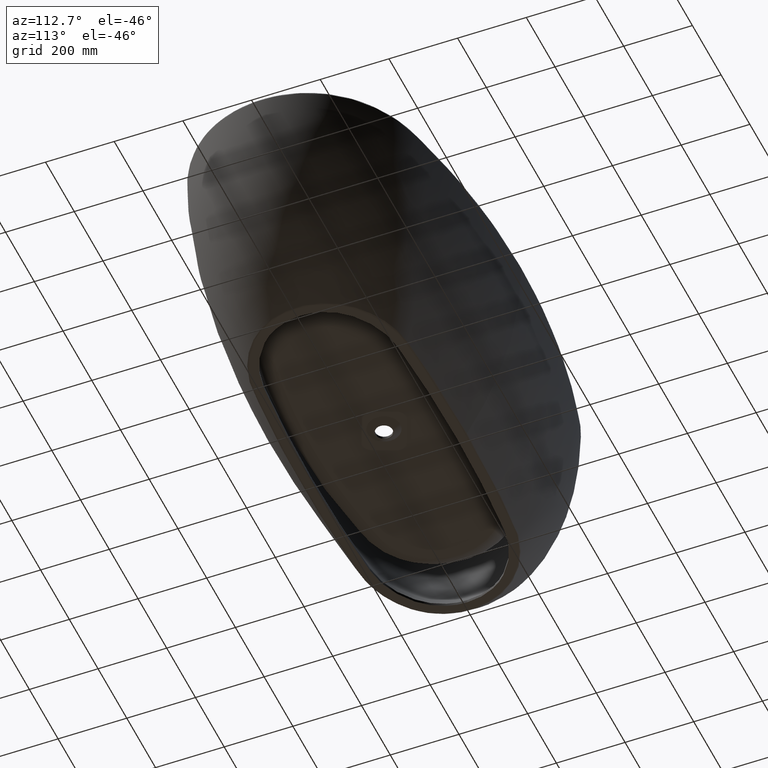
[diagram: clean part render]
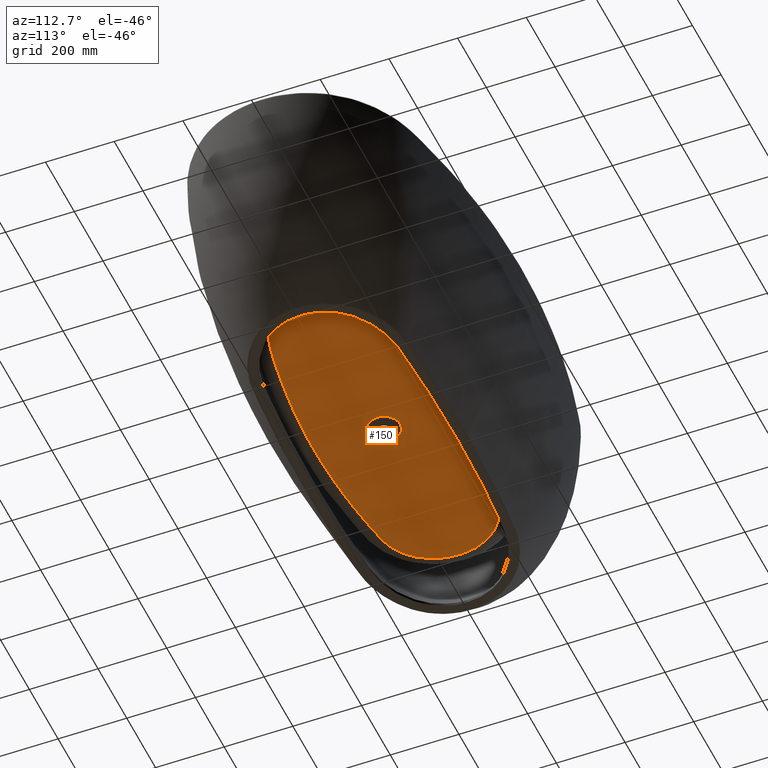
[diagram: same view with one face highlighted and labeled with its STEP entity id]
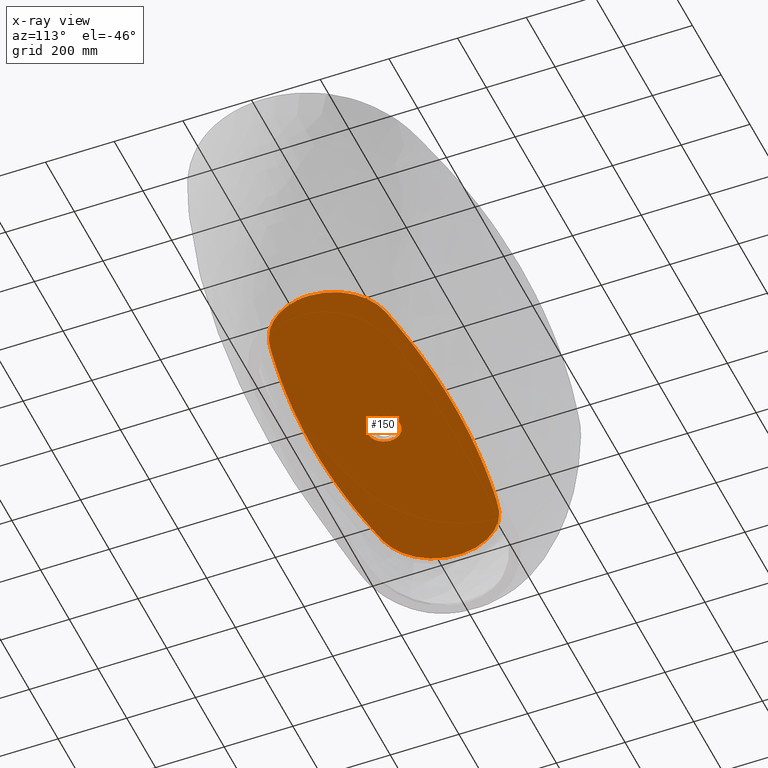
[diagram: x-ray of the same camera — body ghosted, the highlighted face saturated]
A machine part, auxiliary view. The second image highlights one B-rep face of the part: STEP entity #150.
The next image is the same camera in x-ray: the body ghosted, the highlighted face saturated — about 0% of this face is hidden behind the body in this view.
In plain terms, the highlighted conical surface has half-angle 88.299 deg.
Its self-contained STEP definition (entity closure, byte-faithful):
#122=CONICAL_SURFACE('',#644,45.2374720252349,88.2989820319671);
#125=CIRCLE('',#639,47.3250734244238);
#150=ADVANCED_FACE('',(#188,#189),#122,.T.);
#188=FACE_BOUND('',#224,.T.);
#189=FACE_BOUND('',#225,.T.);
#224=EDGE_LOOP('',(#305,#306,#307));
#225=EDGE_LOOP('',(#308));
#305=ORIENTED_EDGE('',*,*,#514,.F.);
#306=ORIENTED_EDGE('',*,*,#515,.F.);
#307=ORIENTED_EDGE('',*,*,#516,.F.);
#308=ORIENTED_EDGE('',*,*,#511,.T.);
#445=VERTEX_POINT('',#4102);
#448=VERTEX_POINT('',#4115);
#449=VERTEX_POINT('',#4116);
#450=VERTEX_POINT('',#4205);
#511=EDGE_CURVE('',#445,#445,#125,.T.);
#514=EDGE_CURVE('',#448,#449,#589,.T.);
#515=EDGE_CURVE('',#450,#448,#590,.T.);
#516=EDGE_CURVE('',#449,#450,#591,.T.);
#589=B_SPLINE_CURVE_WITH_KNOTS('',3,(#4109,#4110,#4111,#4112,#4113,#4114),
 .UNSPECIFIED.,.F.,.F.,(4,2,4),(0.,0.5,1.),.UNSPECIFIED.);
#590=B_SPLINE_CURVE_WITH_KNOTS('',3,(#4117,#4118,#4119,#4120,#4121,#4122,
#4123,#4124,#4125,#4126,#4127,#4128,#4129,#4130,#4131,#4132,#4133,#4134,
#4135,#4136,#4137,#4138,#4139,#4140,#4141,#4142,#4143,#4144,#4145,#4146,
#4147,#4148,#4149,#4150,#4151,#4152,#4153,#4154,#4155,#4156,#4157,#4158,
#4159,#4160,#4161,#4162,#4163,#4164,#4165,#4166,#4167,#4168,#4169,#4170,
#4171,#4172,#4173,#4174,#4175,#4176,#4177,#4178,#4179,#4180,#4181,#4182,
#4183,#4184,#4185,#4186,#4187,#4188,#4189,#4190,#4191,#4192,#4193,#4194,
#4195,#4196,#4197,#4198,#4199,#4200,#4201,#4202,#4203,#4204),
 .UNSPECIFIED.,.F.,.F.,(4,2,2,2,2,2,2,2,2,2,2,2,2,2,2,2,2,2,2,2,2,2,2,2,
2,2,2,2,2,2,2,2,2,2,2,2,2,2,2,2,2,2,2,4),(0.,0.015625,0.03125,0.0390625,
0.046875,0.0624999999999999,0.0703124999999998,0.0781249999999998,0.0937499999999997,
0.1015625,0.109375,0.1171875,0.125,0.249999999999999,0.312499999999999,
0.374999999999999,0.499999999999999,0.531249999999999,0.539062499999999,
0.546874999999999,0.562499999999999,0.578124999999999,0.593749999999999,
0.601562499999999,0.609375,0.625,0.640625,0.65625,0.671875,0.6875,0.703125,
0.718750000000001,0.726562500000001,0.734375000000001,0.750000000000001,
0.757812500000001,0.765625000000001,0.781250000000001,0.789062500000001,
0.796875000000001,0.812500000000001,0.875000000000001,0.9375,1.),
 .UNSPECIFIED.);
#591=B_SPLINE_CURVE_WITH_KNOTS('',3,(#4206,#4207,#4208,#4209,#4210,#4211,
#4212,#4213,#4214,#4215,#4216,#4217,#4218,#4219,#4220,#4221,#4222,#4223,
#4224,#4225,#4226,#4227),.UNSPECIFIED.,.F.,.F.,(4,2,2,2,2,2,2,2,2,2,4),
(0.,0.0625000000000001,0.125,0.25,0.3125,0.375,0.500000000000001,0.625000000000001,
0.75,0.875,1.),.UNSPECIFIED.);
#639=AXIS2_PLACEMENT_3D('',#4101,#656,#657);
#644=AXIS2_PLACEMENT_3D('',#4228,#666,#667);
#656=DIRECTION('',(0.,0.,1.));
#657=DIRECTION('',(1.,0.,0.));
#666=DIRECTION('',(0.,0.,1.));
#667=DIRECTION('',(1.,0.,0.));
#4101=CARTESIAN_POINT('',(0.,0.,-463.934478977098));
#4102=CARTESIAN_POINT('',(47.3250734244238,0.,-463.934478977098));
#4109=CARTESIAN_POINT('',(-4.80329113461448E-8,-205.325635025215,-459.242322128926));
#4110=CARTESIAN_POINT('',(63.081505439682,-205.325634870625,-459.242322133955));
#4111=CARTESIAN_POINT('',(126.008240467635,-202.384583785483,-458.412506070849));
#4112=CARTESIAN_POINT('',(251.583704126092,-191.0349867488,-456.073393474606));
#4113=CARTESIAN_POINT('',(314.065722293619,-182.625777757895,-454.603613219494));
#4114=CARTESIAN_POINT('',(376.129489571932,-171.476674082967,-453.063906304924));
#4115=CARTESIAN_POINT('',(-4.80329113461448E-8,-205.325635025215,-459.242322128926));
#4116=CARTESIAN_POINT('',(376.129489571932,-171.476674082967,-453.063906304924));
#4117=CARTESIAN_POINT('',(524.236906157653,3.0531769051355E-6,-449.771585508481));
#4118=CARTESIAN_POINT('',(524.236908639576,9.93527596799686,-449.771585433057));
#4119=CARTESIAN_POINT('',(523.412411126641,19.8195530348579,-449.787626433726));
#4120=CARTESIAN_POINT('',(520.200679447475,39.1705122413348,-449.850422308057));
#4121=CARTESIAN_POINT('',(517.814682909968,48.6844174581184,-449.89714754448));
#4122=CARTESIAN_POINT('',(513.035544086514,62.706708260822,-449.991517780933));
#4123=CARTESIAN_POINT('',(511.233414251525,67.354373824704,-450.027205932118));
#4124=CARTESIAN_POINT('',(507.283984734708,76.4045053113042,-450.105779131639));
#4125=CARTESIAN_POINT('',(505.132500236134,80.8243548417206,-450.148743002215));
#4126=CARTESIAN_POINT('',(498.156024634486,93.7731835477998,-450.28881524841));
#4127=CARTESIAN_POINT('',(492.813590615192,101.994168894384,-450.396971811308));
#4128=CARTESIAN_POINT('',(483.729323827159,113.688371991803,-450.583725099407));
#4129=CARTESIAN_POINT('',(480.493575914849,117.48819462458,-450.650823080377));
#4130=CARTESIAN_POINT('',(473.744421764096,124.690949638705,-450.79247591131));
#4131=CARTESIAN_POINT('',(470.223156426654,128.110749499365,-450.867165395334));
#4132=CARTESIAN_POINT('',(459.240509500099,137.851663511789,-451.10271627302));
#4133=CARTESIAN_POINT('',(451.36378494492,143.658635415345,-451.274929892482));
#4134=CARTESIAN_POINT('',(438.687502595618,151.302968440378,-451.559512884814));
#4135=CARTESIAN_POINT('',(434.298279956891,153.679676461364,-451.659236389748));
#4136=CARTESIAN_POINT('',(425.419145420068,157.967063833459,-451.863744265944));
#4137=CARTESIAN_POINT('',(420.91035129879,159.891599069491,-451.96893892395));
#4138=CARTESIAN_POINT('',(411.75735675599,163.311961915796,-452.185581757721));
#4139=CARTESIAN_POINT('',(407.113217335799,164.807982805885,-452.297025219023));
#4140=CARTESIAN_POINT('',(397.68983859478,167.372249052298,-452.52665027134));
#4141=CARTESIAN_POINT('',(392.898330090261,168.40163169506,-452.645627642069));
#4142=CARTESIAN_POINT('',(310.727572303899,183.637021562274,-454.701362086604));
#4143=CARTESIAN_POINT('',(232.545240335063,193.749710364156,-456.565016092973));
#4144=CARTESIAN_POINT('',(114.886033162432,202.469607920961,-458.495653477906));
#4145=CARTESIAN_POINT('',(75.611302096563,204.301603854495,-458.974280768993));
#4146=CARTESIAN_POINT('',(-3.05671019044231,205.702704603398,-459.340401017769));
#4147=CARTESIAN_POINT('',(-42.4752128248378,205.255053001542,-459.213332396385));
#4148=CARTESIAN_POINT('',(-160.390562387675,200.556123383181,-458.038123359444));
#4149=CARTESIAN_POINT('',(-238.532003384567,193.071962328074,-456.342522827586));
#4150=CARTESIAN_POINT('',(-335.657856148394,178.43907050458,-454.056651353927));
#4151=CARTESIAN_POINT('',(-355.055072433415,175.24560036494,-453.58610701729));
#4152=CARTESIAN_POINT('',(-379.266363941496,170.916490696776,-452.986208338051));
#4153=CARTESIAN_POINT('',(-384.106243403092,170.03462271537,-452.865640721006));
#4154=CARTESIAN_POINT('',(-393.778873530181,168.234950432287,-452.623533596917));
#4155=CARTESIAN_POINT('',(-398.556346767461,167.161760840781,-452.505348362929));
#4156=CARTESIAN_POINT('',(-412.623422052619,163.250676303394,-452.163182212832));
#4157=CARTESIAN_POINT('',(-421.69109911163,159.810082440797,-451.949382436497));
#4158=CARTESIAN_POINT('',(-439.206164044969,151.263964449743,-451.546439681989));
#4159=CARTESIAN_POINT('',(-447.670549877486,146.120989843735,-451.357041714641));
#4160=CARTESIAN_POINT('',(-463.291943032483,134.563438587851,-451.014765014923));
#4161=CARTESIAN_POINT('',(-470.547442360683,128.116761903383,-450.859542871219));
#4162=CARTESIAN_POINT('',(-480.564702099446,117.405020732328,-450.64934748755));
#4163=CARTESIAN_POINT('',(-483.765023941486,113.642574858256,-450.582990974481));
#4164=CARTESIAN_POINT('',(-489.754117908983,105.932476599106,-450.459868301442));
#4165=CARTESIAN_POINT('',(-492.570892493425,101.975628047728,-450.402379645008));
#4166=CARTESIAN_POINT('',(-500.505234832809,89.8096161773362,-450.241311156218));
#4167=CARTESIAN_POINT('',(-505.10941551416,81.3064722798462,-450.149067889594));
#4168=CARTESIAN_POINT('',(-512.943102127995,63.5130256697828,-449.993167282711));
#4169=CARTESIAN_POINT('',(-516.177586124398,54.1538395114101,-449.929427844353));
#4170=CARTESIAN_POINT('',(-521.011492402145,35.3084280062016,-449.834500053744));
#4171=CARTESIAN_POINT('',(-522.652215865234,25.7541244313514,-449.802488201624));
#4172=CARTESIAN_POINT('',(-524.386528242503,6.38322638989571,-449.768656861925));
#4173=CARTESIAN_POINT('',(-524.468056004403,-3.52210012210558,-449.767072637972));
#4174=CARTESIAN_POINT('',(-523.026800315092,-23.0326140338324,-449.795176381387));
#4175=CARTESIAN_POINT('',(-521.524492665203,-32.6259762416268,-449.824471429576));
#4176=CARTESIAN_POINT('',(-516.990904071601,-51.4960307409093,-449.913422014494));
#4177=CARTESIAN_POINT('',(-513.93071095011,-60.8382380847538,-449.973646620109));
#4178=CARTESIAN_POINT('',(-506.32240042959,-78.8754820621221,-450.124827814101));
#4179=CARTESIAN_POINT('',(-501.825856523485,-87.4819839406661,-450.214754227378));
#4180=CARTESIAN_POINT('',(-494.062333454544,-99.785371428892,-450.372023307593));
#4181=CARTESIAN_POINT('',(-491.303668906955,-103.784821210492,-450.428203618758));
#4182=CARTESIAN_POINT('',(-485.437945958987,-111.576342925599,-450.548491239839));
#4183=CARTESIAN_POINT('',(-482.310086631626,-115.386512447353,-450.61306063149));
#4184=CARTESIAN_POINT('',(-472.455981204004,-126.282915690825,-450.819036851275));
#4185=CARTESIAN_POINT('',(-465.313855709532,-132.838247302283,-450.971254924925));
#4186=CARTESIAN_POINT('',(-453.789211722175,-141.666738794781,-451.22272711397));
#4187=CARTESIAN_POINT('',(-449.810876936957,-144.440239936508,-451.310459064681));
#4188=CARTESIAN_POINT('',(-441.573475007142,-149.639709505052,-451.49439277645));
#4189=CARTESIAN_POINT('',(-437.289328403031,-152.078087192434,-451.5911683355));
#4190=CARTESIAN_POINT('',(-424.204280837325,-158.745991525495,-451.890722838424));
#4191=CARTESIAN_POINT('',(-415.208493202477,-162.328842218836,-452.101777077905));
#4192=CARTESIAN_POINT('',(-401.320890339028,-166.455846580492,-452.437650318645));
#4193=CARTESIAN_POINT('',(-396.625483860264,-167.621888487541,-452.552849692673));
#4194=CARTESIAN_POINT('',(-387.100741127613,-169.52987407827,-452.790292551898));
#4195=CARTESIAN_POINT('',(-382.300628907425,-170.364382497192,-452.910674218558));
#4196=CARTESIAN_POINT('',(-367.928042779752,-172.955992669451,-453.267591591545));
#4197=CARTESIAN_POINT('',(-358.335110116522,-174.618326033243,-453.503361328417));
#4198=CARTESIAN_POINT('',(-310.329781537779,-182.602091639458,-454.668836648495));
#4199=CARTESIAN_POINT('',(-271.779910813165,-187.944231505372,-455.562079524146));
#4200=CARTESIAN_POINT('',(-194.388165856529,-196.549040801324,-457.172516323177));
#4201=CARTESIAN_POINT('',(-155.565225719657,-199.810295718322,-457.890830992756));
#4202=CARTESIAN_POINT('',(-77.8674257269089,-204.19989380868,-458.932315489101));
#4203=CARTESIAN_POINT('',(-38.9632906142455,-205.3256351207,-459.24232212582));
#4204=CARTESIAN_POINT('',(-4.80328647883876E-8,-205.325635025215,-459.242322128926));
#4205=CARTESIAN_POINT('',(524.236906157653,3.0531769051355E-6,-449.771585508481));
#4206=CARTESIAN_POINT('',(376.129489571932,-171.476674082967,-453.063906304924));
#4207=CARTESIAN_POINT('',(381.268001314286,-170.553594439841,-452.936427706585));
#4208=CARTESIAN_POINT('',(386.417822110252,-169.655137478225,-452.807411838995));
#4209=CARTESIAN_POINT('',(396.646328595523,-167.62853270839,-452.55224117153));
#4210=CARTESIAN_POINT('',(401.670591100344,-166.373633217022,-452.429037867131));
#4211=CARTESIAN_POINT('',(416.480418653145,-161.903024935153,-452.071355921287));
#4212=CARTESIAN_POINT('',(426.006240602471,-157.990042158513,-451.848655733635));
#4213=CARTESIAN_POINT('',(439.766059324015,-150.700936232245,-451.535047679331));
#4214=CARTESIAN_POINT('',(444.27075559962,-148.025139536873,-451.433805754591));
#4215=CARTESIAN_POINT('',(452.907221263713,-142.309968784704,-451.242043118867));
#4216=CARTESIAN_POINT('',(457.06463087139,-139.258909382083,-451.150927767536));
#4217=CARTESIAN_POINT('',(469.064797036789,-129.537848896073,-450.890806443079));
#4218=CARTESIAN_POINT('',(476.469291667304,-122.274400734449,-450.734266382883));
#4219=CARTESIAN_POINT('',(489.82443641391,-106.277616611028,-450.457652357798));
#4220=CARTESIAN_POINT('',(495.652022901454,-97.7924820266595,-450.339457603825));
#4221=CARTESIAN_POINT('',(505.815602293279,-79.9680965336399,-450.13478464904));
#4222=CARTESIAN_POINT('',(510.132730717472,-70.6180407136413,-450.048943610847));
#4223=CARTESIAN_POINT('',(517.178021328173,-51.008071539127,-449.909638958016));
#4224=CARTESIAN_POINT('',(519.813570076711,-40.9897400389455,-449.858002243471));
#4225=CARTESIAN_POINT('',(523.337856743482,-20.7174014587893,-449.789074453883));
#4226=CARTESIAN_POINT('',(524.236903550917,-10.4349080931218,-449.771585587699));
#4227=CARTESIAN_POINT('',(524.236906157653,3.05317694895709E-6,-449.771585508481));
#4228=CARTESIAN_POINT('',(0.,0.,-463.996474663077));